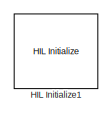
[diagram: root canvas - part 1/3, top center region]
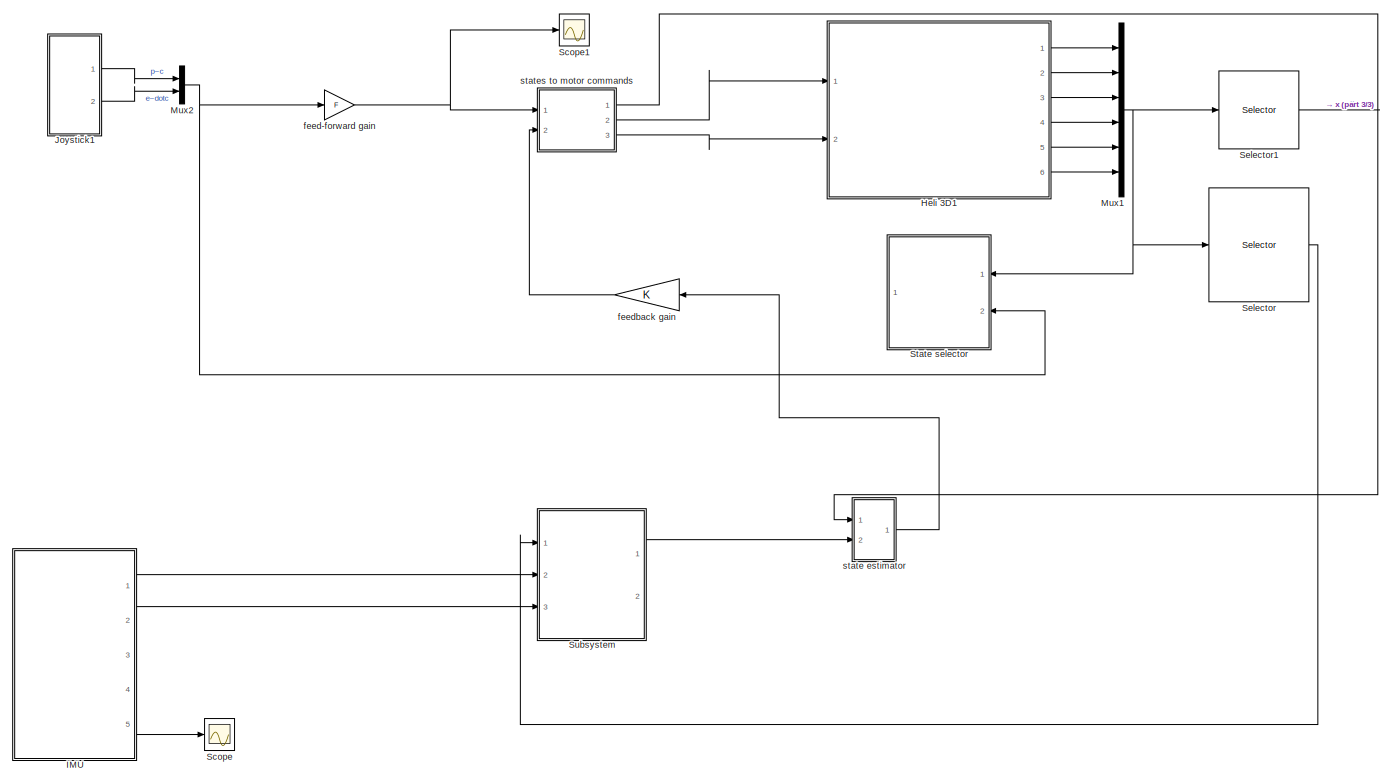
[diagram: root canvas - part 2/3, most of the canvas]
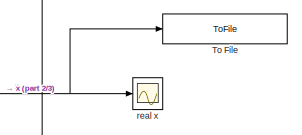
[diagram: root canvas - part 3/3, top right region]
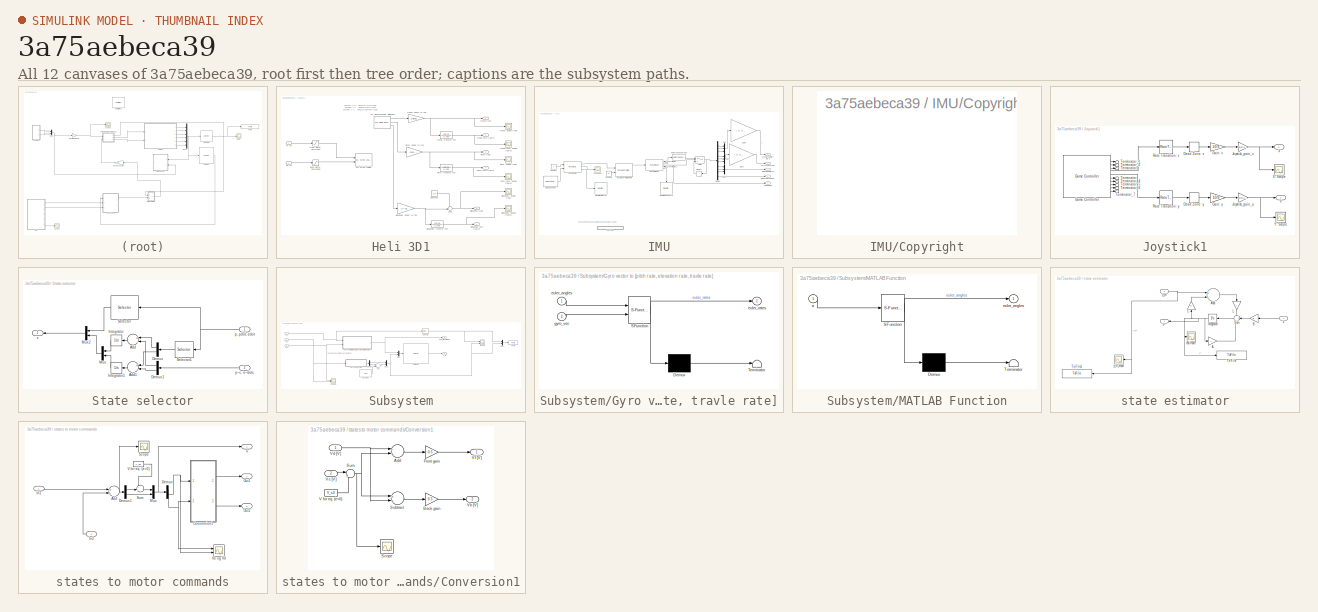
[diagram: thumbnail index - all 12 canvases of the model, root first then tree order]
MODEL slx_3a75aebeca39
KIND model
CONFIG AbsTol = auto
CONFIG FixedStep = 0.002
CONFIG MaxStep = auto
CONFIG MinStep = auto
CONFIG PostLoadFcn = qc_set_target_type(getConfigSet(bdroot, 'QUARC Default Target Configuration'));
CONFIG RelTol = 1e-3
CONFIG SampleTimeConstraint = Unconstrained
CONFIG Solver = ode1
CONFIG SolverMode = Auto
CONFIG SolverName = ode1
CONFIG StartTime = 0.0
CONFIG StopTime = inf
BLOCK [Reference] HIL Initialize1  REF=quarc_library/Data Acquisition/Generic/Configuration/HIL Initialize
  AttributesFormatString = %<object_name> (%<board_type>-%<board_number>)
  Ports = []
  Priority = -99
  SourceBlock = quarc_library/Data Acquisition/Generic/Configuration/HIL Initialize
  SourceType = HIL Initialize
  UserDataPersistent = on
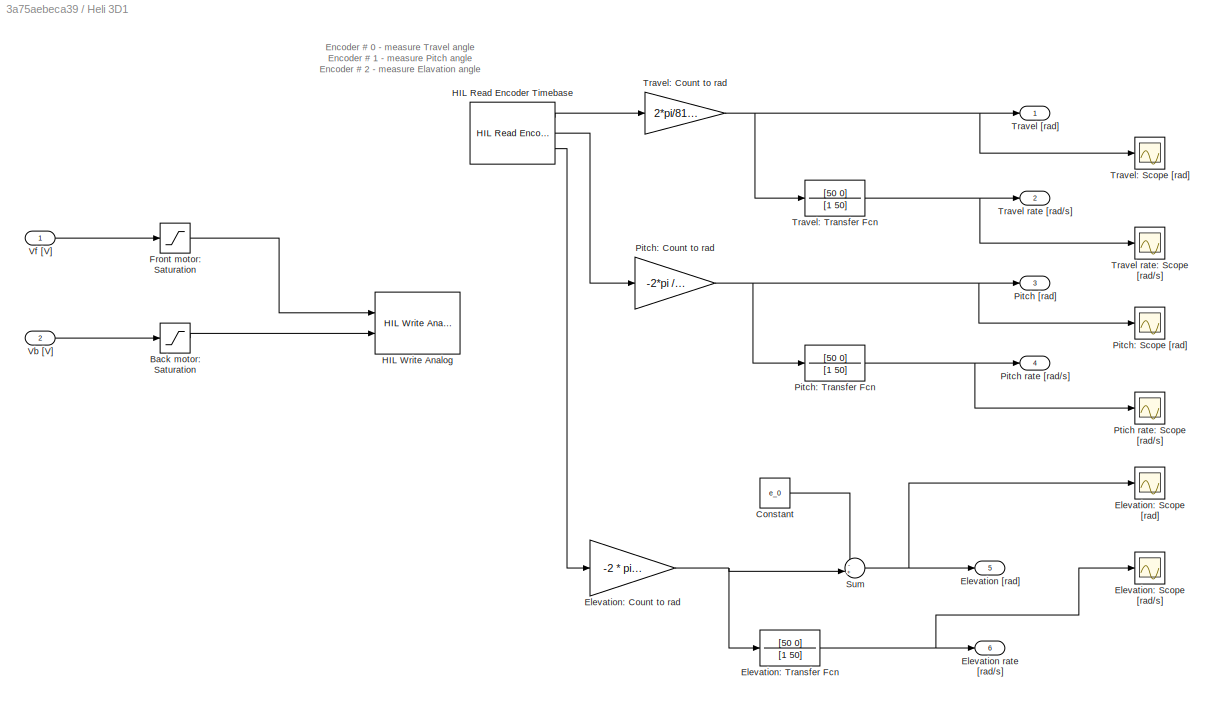
BLOCK [SubSystem] Heli 3D1
  Ports = [2, 6]
  RequestExecContextInheritance = off
  Variant = off
BLOCK [Saturate] Heli 3D1/Back motor: Saturation
  InputPortMap = u0
  LowerLimit = -5
  Ports = [1, 1]
  UpperLimit = 5
BLOCK [Constant] Heli 3D1/Constant
  Value = e_0
BLOCK [Outport] Heli 3D1/Elevation [rad]
  IconDisplay = Port number
  Port = 5
BLOCK [Outport] Heli 3D1/Elevation rate [rad//s]
  IconDisplay = Port number
  Port = 6
BLOCK [Gain] Heli 3D1/Elevation: Count to rad
  Gain = -2 * pi /4096
  OutDataTypeStr = Inherit: Inherit via internal rule
  ParamDataTypeStr = Inherit: Inherit via internal rule
  SaturateOnIntegerOverflow = off
BLOCK [Scope] Heli 3D1/Elevation: Scope [rad//s]
  Ports = [1]
  ScopeSpecificationString = C++SS(StrPVP('Location','[1236, 673, 1560, 912]'),StrPVP('Open','off'),MxPVP('AxesTitles',24,'struct(''axes1'',''%<SignalLabel>'')'),MxPVP('ScopeGraphics',28,'struct(''FigureColor'',''[0.5 0.5 0.5]'',''AxesColor'',''[0 0 0]'',''AxesTickColor'',''[1 1 1]'',''LineColors'',''[1 1 0;1 0 1;0 1 1;1 0 0;0 1 0;0 0 1]'',''LineStyles'',''-|-|-|-|-|-'',''LineWidths'',''[0.5 0.5 0.5 0.5 0.5 0.5]'',''MarkerSty...<+342ch>
BLOCK [Scope] Heli 3D1/Elevation: Scope [rad]
  Ports = [1]
  ScopeSpecificationString = Simulink.scopes.TimeScopeBlockCfg('CurrentConfiguration', extmgr.ConfigurationSet(extmgr.Configuration('Core','General UI',true),extmgr.Configuration('Core','Source UI',true),extmgr.Configuration('Sources','WiredSimulink',true,'DataLoggingVariableName','ScopeData12','DataLoggingSaveFormat','StructureWithTime','DataLoggingLimitDataPoints',true,'DataLoggingDecimation','1','DataLoggingDecimateData',t...<+1699ch>
BLOCK [TransferFcn] Heli 3D1/Elevation: Transfer Fcn
  Denominator = [1 50]
  Numerator = [50 0]
BLOCK [Saturate] Heli 3D1/Front motor: Saturation
  InputPortMap = u0
  LowerLimit = -5
  Ports = [1, 1]
  UpperLimit = 5
BLOCK [Reference] Heli 3D1/HIL Read Encoder Timebase  REF=quarc_library/Data Acquisition/Generic/Timebases/HIL Read Encoder
Timebase
  AttributesFormatString = (%<object_name>)
  Ports = [0, 3]
  SourceBlock = quarc_library/Data Acquisition/Generic/Timebases/HIL Read Encoder\nTimebase
  SourceType = HIL Read Encoder Timebase
  UserDataPersistent = on
BLOCK [Reference] Heli 3D1/HIL Write Analog  REF=quarc_library/Data Acquisition/Generic/Immediate I//O/HIL Write Analog
  AttributesFormatString = (%<object_name>)
  Ports = [2]
  SourceBlock = quarc_library/Data Acquisition/Generic/Immediate I//O/HIL Write Analog
  SourceType = HIL Write Analog
  UserDataPersistent = on
BLOCK [Outport] Heli 3D1/Pitch [rad]
  IconDisplay = Port number
  Port = 3
BLOCK [Outport] Heli 3D1/Pitch rate [rad//s]
  IconDisplay = Port number
  Port = 4
BLOCK [Gain] Heli 3D1/Pitch: Count to rad
  Gain = -2*pi /4096
  OutDataTypeStr = Inherit: Inherit via internal rule
  ParamDataTypeStr = Inherit: Inherit via internal rule
  SaturateOnIntegerOverflow = off
BLOCK [Scope] Heli 3D1/Pitch: Scope [rad]
  Ports = [1]
  ScopeSpecificationString = Simulink.scopes.TimeScopeBlockCfg('CurrentConfiguration', extmgr.ConfigurationSet(extmgr.Configuration('Core','General UI',true),extmgr.Configuration('Core','Source UI',true),extmgr.Configuration('Sources','WiredSimulink',true,'DataLoggingVariableName','ScopeData10','DataLoggingSaveFormat','StructureWithTime','DataLoggingLimitDataPoints',true,'DataLoggingDecimation','1','DataLoggingDecimateData',t...<+1737ch>
BLOCK [TransferFcn] Heli 3D1/Pitch: Transfer Fcn
  Denominator = [1 50]
  Numerator = [50 0]
BLOCK [Scope] Heli 3D1/Ptich rate: Scope [rad//s]
  Ports = [1]
  ScopeSpecificationString = C++SS(StrPVP('Location','[1236, 673, 1560, 912]'),StrPVP('Open','off'),MxPVP('AxesTitles',24,'struct(''axes1'',''%<SignalLabel>'')'),MxPVP('ScopeGraphics',28,'struct(''FigureColor'',''[0.5 0.5 0.5]'',''AxesColor'',''[0 0 0]'',''AxesTickColor'',''[1 1 1]'',''LineColors'',''[1 1 0;1 0 1;0 1 1;1 0 0;0 1 0;0 0 1]'',''LineStyles'',''-|-|-|-|-|-'',''LineWidths'',''[0.5 0.5 0.5 0.5 0.5 0.5]'',''MarkerSty...<+342ch>
BLOCK [Sum] Heli 3D1/Sum
  IconShape = round
  InputSameDT = off
  Inputs = -+|
  OutDataTypeStr = Inherit: Inherit via internal rule
  Ports = [2, 1]
  SaturateOnIntegerOverflow = off
BLOCK [Outport] Heli 3D1/Travel [rad]
  IconDisplay = Port number
BLOCK [Outport] Heli 3D1/Travel rate [rad//s]
  IconDisplay = Port number
  Port = 2
BLOCK [Scope] Heli 3D1/Travel rate: Scope [rad//s]
  Ports = [1]
  ScopeSpecificationString = Simulink.scopes.TimeScopeBlockCfg('CurrentConfiguration', extmgr.ConfigurationSet(extmgr.Configuration('Core','General UI',true),extmgr.Configuration('Core','Source UI',true),extmgr.Configuration('Sources','WiredSimulink',true,'DataLoggingVariableName','ScopeData9','DataLoggingSaveFormat','StructureWithTime','DataLoggingLimitDataPoints',true,'DataLoggingDecimation','1','DataLoggingDecimateData',tr...<+1672ch>
BLOCK [Gain] Heli 3D1/Travel: Count to rad
  Gain = 2*pi/8192
  OutDataTypeStr = Inherit: Inherit via internal rule
  ParamDataTypeStr = Inherit: Inherit via internal rule
  SaturateOnIntegerOverflow = off
BLOCK [Scope] Heli 3D1/Travel: Scope [rad]
  Ports = [1]
  ScopeSpecificationString = Simulink.scopes.TimeScopeBlockCfg('CurrentConfiguration', extmgr.ConfigurationSet(extmgr.Configuration('Core','General UI',true),extmgr.Configuration('Core','Source UI',true),extmgr.Configuration('Sources','WiredSimulink',true,'DataLoggingVariableName','ScopeData8','DataLoggingSaveFormat','StructureWithTime','DataLoggingLimitDataPoints',true,'DataLoggingDecimation','1','DataLoggingDecimateData',tr...<+1672ch>
BLOCK [TransferFcn] Heli 3D1/Travel: Transfer Fcn
  Denominator = [1 50]
  Numerator = [50 0]
BLOCK [Inport] Heli 3D1/Vb [V]
  IconDisplay = Port number
  Port = 2
BLOCK [Inport] Heli 3D1/Vf [V]
  IconDisplay = Port number
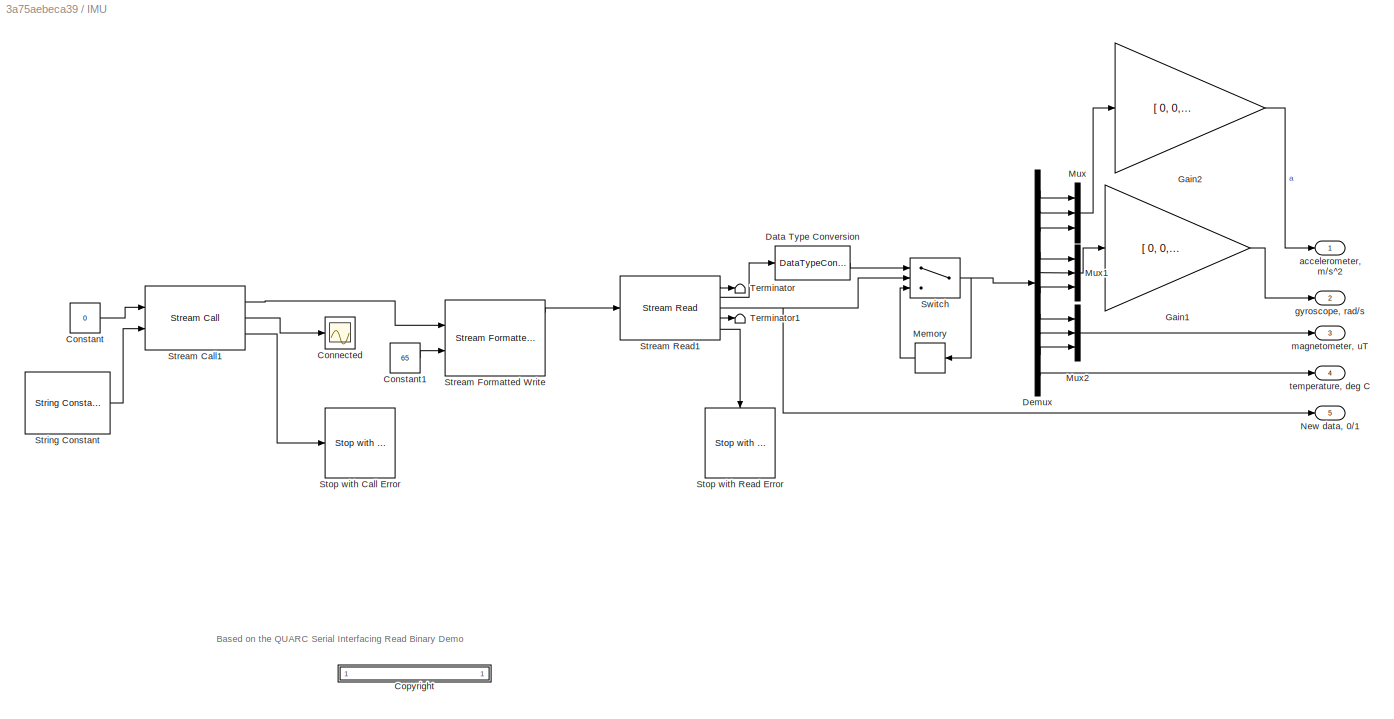
BLOCK [SubSystem] IMU
  Ports = [0, 5]
  RequestExecContextInheritance = off
  Variant = off
BLOCK [Scope] IMU/Connected
  Ports = [1]
  ScopeSpecificationString = Simulink.scopes.TimeScopeBlockCfg('CurrentConfiguration', extmgr.ConfigurationSet(extmgr.Configuration('Core','General UI',true),extmgr.Configuration('Core','Source UI',true),extmgr.Configuration('Sources','WiredSimulink',true,'DataLoggingSaveFormat','StructureWithTime','DataLoggingLimitDataPoints',true,'DataLoggingDecimation','1','DataLoggingDecimateData',true,'DataLoggingVariableName','ScopeData...<+909ch>
BLOCK [Constant] IMU/Constant
  Value = 0
BLOCK [Constant] IMU/Constant1
  Value = 65
BLOCK [SubSystem] IMU/<copyright redacted>
  OpenFcn = web('http://www.quanser.com/');
  Permissions = NoReadOrWrite
  PermitHierarchicalResolution = None
  Ports = []
  RequestExecContextInheritance = off
  Variant = off
BLOCK [DataTypeConversion] IMU/Data Type Conversion
  OutDataTypeStr = double
  RndMeth = Floor
  SaturateOnIntegerOverflow = off
BLOCK [Demux] IMU/Demux
  DisplayOption = bar
  Outputs = 10
  Ports = [1, 10]
BLOCK [Gain] IMU/Gain1
  Gain = [ 0, 0, 1; 0, 1, 0; -1, 0, 0]
  Multiplication = Matrix(K*u) (u vector)
  OutDataTypeStr = Inherit: Inherit via internal rule
  ParamDataTypeStr = Inherit: Inherit via internal rule
  SaturateOnIntegerOverflow = off
BLOCK [Gain] IMU/Gain2
  Gain = [ 0, 0, 1; 0, 1, 0; -1, 0, 0]
  Multiplication = Matrix(K*u) (u vector)
  OutDataTypeStr = Inherit: Inherit via internal rule
  ParamDataTypeStr = Inherit: Inherit via internal rule
  SaturateOnIntegerOverflow = off
BLOCK [Memory] IMU/Memory
  X0 = [0 0 0 0 0 0 0 0 0 0]
BLOCK [Mux] IMU/Mux
  DisplayOption = bar
  Inputs = 3
  Ports = [3, 1]
BLOCK [Mux] IMU/Mux1
  DisplayOption = bar
  Inputs = 3
  Ports = [3, 1]
BLOCK [Mux] IMU/Mux2
  DisplayOption = bar
  Inputs = 3
  Ports = [3, 1]
BLOCK [Outport] IMU/New data, 0//1
  IconDisplay = Port number
  Port = 5
BLOCK [Reference] IMU/Stop with Call Error  REF=quarc_library/Sinks/Error Handling/Stop with Error
  Ports = [1]
  SourceBlock = quarc_library/Sinks/Error Handling/Stop with Error
  SourceType = Stop with Error
BLOCK [Reference] IMU/Stop with Read Error  REF=quarc_library/Sinks/Error Handling/Stop with Error
  Ports = [1]
  SourceBlock = quarc_library/Sinks/Error Handling/Stop with Error
  SourceType = Stop with Error
BLOCK [Reference] IMU/Stream Call1  REF=quarc_library/Communications/Intermediate/Stream Call
  Ports = [2, 3]
  SourceBlock = quarc_library/Communications/Intermediate/Stream Call
  SourceType = Stream Call
BLOCK [Reference] IMU/Stream Formatted Write  REF=quarc_library/Communications/Intermediate/Stream Formatted
Write
  Ports = [2, 5]
  SourceBlock = quarc_library/Communications/Intermediate/Stream Formatted\nWrite
  SourceType = Stream Formatted Write
BLOCK [Reference] IMU/Stream Read1  REF=quarc_library/Communications/Intermediate/Stream Read
  Ports = [1, 5]
  SourceBlock = quarc_library/Communications/Intermediate/Stream Read
  SourceType = Stream Read
BLOCK [Reference] IMU/String Constant  REF=quarc_library/Strings/String Constant
  AttributesFormatString = "serial://IMU:7?baud=115200,word=8,parity=none,stop=1"
  Ports = [0, 1]
  SourceBlock = quarc_library/Strings/String Constant
  SourceType = String Constant
BLOCK [Switch] IMU/Switch
  Criteria = u2 > Threshold
  InputSameDT = off
  SaturateOnIntegerOverflow = off
BLOCK [Terminator] IMU/Terminator
BLOCK [Terminator] IMU/Terminator1
BLOCK [Outport] IMU/accelerometer, m//s^2
  IconDisplay = Port number
BLOCK [Outport] IMU/gyroscope, rad//s
  IconDisplay = Port number
  Port = 2
BLOCK [Outport] IMU/magnetometer, uT
  IconDisplay = Port number
  Port = 3
BLOCK [Outport] IMU/temperature, deg C
  IconDisplay = Port number
  Port = 4
BLOCK [SubSystem] Joystick1
  Ports = [0, 2]
  RequestExecContextInheritance = off
  Variant = off
BLOCK [DeadZone] Joystick1/Dead Zone: x
  LowerValue = -0.1
  UpperValue = 0.1
BLOCK [DeadZone] Joystick1/Dead Zone: y
  LowerValue = -0.1
  UpperValue = 0.1
BLOCK [Gain] Joystick1/Gain: x
  Gain = 10/9
  OutDataTypeStr = Inherit: Inherit via internal rule
  ParamDataTypeStr = Inherit: Inherit via internal rule
  SaturateOnIntegerOverflow = off
BLOCK [Gain] Joystick1/Gain: y
  Gain = 10/9
  OutDataTypeStr = Inherit: Inherit via internal rule
  ParamDataTypeStr = Inherit: Inherit via internal rule
  SaturateOnIntegerOverflow = off
BLOCK [Reference] Joystick1/Game Controller  REF=quarc_library/Devices/Peripherals/Target/Game Controller
  Ports = [0, 10]
  SourceBlock = quarc_library/Devices/Peripherals/Target/Game Controller
  SourceType = Game Controller
BLOCK [Gain] Joystick1/Joystick_gain_x
  Gain = Joystick_gain_x
  OutDataTypeStr = Inherit: Inherit via internal rule
  ParamDataTypeStr = Inherit: Inherit via internal rule
  SaturateOnIntegerOverflow = off
BLOCK [Gain] Joystick1/Joystick_gain_y
  Gain = Joystick_gain_y
  OutDataTypeStr = Inherit: Inherit via internal rule
  ParamDataTypeStr = Inherit: Inherit via internal rule
  SaturateOnIntegerOverflow = off
BLOCK [RateTransition] Joystick1/Rate Transition: x
BLOCK [RateTransition] Joystick1/Rate Transition: y
BLOCK [Terminator] Joystick1/Terminator
BLOCK [Terminator] Joystick1/Terminator1
BLOCK [Terminator] Joystick1/Terminator_1
BLOCK [Terminator] Joystick1/Terminator_2
BLOCK [Terminator] Joystick1/Terminator_4
BLOCK [Terminator] Joystick1/Terminator_5
BLOCK [Terminator] Joystick1/Terminator_6
BLOCK [Terminator] Joystick1/Terminator_7
BLOCK [Outport] Joystick1/X
  IconDisplay = Port number
BLOCK [Scope] Joystick1/X: Scope
  Ports = [1]
  ScopeSpecificationString = Simulink.scopes.TimeScopeBlockCfg('CurrentConfiguration', extmgr.ConfigurationSet(extmgr.Configuration('Core','General UI',true),extmgr.Configuration('Core','Source UI',true),extmgr.Configuration('Sources','WiredSimulink',true,'DataLoggingVariableName','ScopeData7','DataLoggingSaveFormat','StructureWithTime','DataLoggingLimitDataPoints',true,'DataLoggingDecimation','1','DataLoggingDecimateData',tr...<+1663ch>
BLOCK [Outport] Joystick1/Y
  IconDisplay = Port number
  Port = 2
BLOCK [Scope] Joystick1/Y: Scope
  Ports = [1]
  ScopeSpecificationString = Simulink.scopes.TimeScopeBlockCfg('CurrentConfiguration', extmgr.ConfigurationSet(extmgr.Configuration('Core','General UI',true),extmgr.Configuration('Core','Source UI',true),extmgr.Configuration('Sources','WiredSimulink',true,'DataLoggingVariableName','ScopeData5','DataLoggingSaveFormat','StructureWithTime','DataLoggingLimitDataPoints',true,'DataLoggingDecimation','1','DataLoggingDecimateData',tr...<+1667ch>
BLOCK [Mux] Mux1
  DisplayOption = bar
  Inputs = 6
  Ports = [6, 1]
BLOCK [Mux] Mux2
  DisplayOption = bar
  Inputs = 2
  Ports = [2, 1]
BLOCK [Scope] Scope
  Ports = [1]
  ScopeSpecificationString = Simulink.scopes.TimeScopeBlockCfg('CurrentConfiguration', extmgr.ConfigurationSet(extmgr.Configuration('Core','General UI',true),extmgr.Configuration('Core','Source UI',true),extmgr.Configuration('Sources','WiredSimulink',true,'DataLoggingVariableName','ScopeData5'),extmgr.Configuration('Visuals','Time Domain',true,'SerializedDisplays',{struct('MinYLimReal','-0.125','MaxYLimReal','1.125','YLabelRe...<+1382ch>
BLOCK [Scope] Scope1
  Ports = [1]
  ScopeSpecificationString = Simulink.scopes.TimeScopeBlockCfg('CurrentConfiguration', extmgr.ConfigurationSet(extmgr.Configuration('Core','General UI',true),extmgr.Configuration('Core','Source UI',true),extmgr.Configuration('Sources','WiredSimulink',true,'DataLoggingVariableName','ScopeData2'),extmgr.Configuration('Visuals','Time Domain',true,'SerializedDisplays',{struct('MinYLimReal','-0.05563','MaxYLimReal','-0.05464','YLa...<+1499ch>
BLOCK [Selector] Selector
  IndexOptions = Index vector (dialog)
  Indices = [3, 5 , 1]
  InputPortWidth = 6
  OutputSizes = 1
  Ports = [1, 1]
BLOCK [Selector] Selector1
  IndexOptions = Index vector (dialog)
  Indices = [3 4 5 6 2]
  InputPortWidth = 6
  OutputSizes = 1
  Ports = [1, 1]
BLOCK [SubSystem] State selector
  Ports = [2, 1]
  RequestExecContextInheritance = off
  Variant = off
BLOCK [Sum] State selector/Add
  InputSameDT = off
  Inputs = +-
  OutDataTypeStr = Inherit: Inherit via internal rule
  Ports = [2, 1]
  SaturateOnIntegerOverflow = off
BLOCK [Sum] State selector/Add1
  InputSameDT = off
  Inputs = +-
  OutDataTypeStr = Inherit: Inherit via internal rule
  Ports = [2, 1]
  SaturateOnIntegerOverflow = off
BLOCK [Demux] State selector/Demux
  DisplayOption = bar
  Outputs = 2
  Ports = [1, 2]
BLOCK [Demux] State selector/Demux1
  DisplayOption = bar
  Outputs = 2
  Ports = [1, 2]
BLOCK [Integrator] State selector/Integrator
  Ports = [1, 1]
BLOCK [Integrator] State selector/Integrator1
  Ports = [1, 1]
BLOCK [Mux] State selector/Mux
  DisplayOption = bar
  Inputs = 2
  Ports = [2, 1]
BLOCK [Mux] State selector/Mux2
  DisplayOption = bar
  Inputs = 2
  Ports = [2, 1]
BLOCK [Selector] State selector/Selector
  IndexOptions = Index vector (dialog)
  Indices = [3 4 6]
  InputPortWidth = 6
  OutputSizes = 1
  Ports = [1, 1]
BLOCK [Selector] State selector/Selector1
  IndexOptions = Index vector (dialog)
  Indices = [3 6]
  InputPortWidth = 6
  OutputSizes = 1
  Ports = [1, 1]
BLOCK [Inport] State selector/p, pdot, edot
  IconDisplay = Port number
BLOCK [Inport] State selector/p~c, e~dotc
  IconDisplay = Port number
  Port = 2
BLOCK [Outport] State selector/x
  IconDisplay = Port number
BLOCK [SubSystem] Subsystem
  Ports = [3, 2]
  RequestExecContextInheritance = off
  Variant = off
BLOCK [Sum] Subsystem/Add
  InputSameDT = off
  OutDataTypeStr = Inherit: Inherit via internal rule
  Ports = [2, 1]
  SaturateOnIntegerOverflow = off
BLOCK [Constant] Subsystem/Constant
  Value = -0.11
BLOCK [Demux] Subsystem/Demux
  DisplayOption = bar
  Outputs = 2
  Ports = [1, 2]
BLOCK [SubSystem] Subsystem/Gyro vector to [pitch rate, elevation rate, travle rate]
  ErrorFcn = Stateflow.Translate.translate
  PermitHierarchicalResolution = ExplicitOnly
  Ports = [2, 1]
  RequestExecContextInheritance = off
  SFBlockType = MATLAB Function
  TreatAsAtomicUnit = on
  Variant = off
BLOCK [Demux] Subsystem/Gyro vector to [pitch rate, elevation rate, travle rate]/ Demux 
  Outputs = 1
  Ports = [1, 1]
BLOCK [S-Function] Subsystem/Gyro vector to [pitch rate, elevation rate, travle rate]/ SFunction 
  EnableBusSupport = on
  FunctionName = sf_sfun
  PortCounts = [2 2]
  Ports = [2, 2]
  SFunctionDeploymentMode = off
  Tag = Stateflow S-Function LQR_integral_IMU_task4 2
BLOCK [Terminator] Subsystem/Gyro vector to [pitch rate, elevation rate, travle rate]/ Terminator 
BLOCK [Inport] Subsystem/Gyro vector to [pitch rate, elevation rate, travle rate]/euler_angles
  IconDisplay = Port number
BLOCK [Outport] Subsystem/Gyro vector to [pitch rate, elevation rate, travle rate]/euler_rates
  IconDisplay = Port number
BLOCK [Inport] Subsystem/Gyro vector to [pitch rate, elevation rate, travle rate]/gyro_vec
  IconDisplay = Port number
  Port = 2
BLOCK [Inport] Subsystem/In1
  IconDisplay = Port number
BLOCK [Inport] Subsystem/In2
  IconDisplay = Port number
  Port = 2
BLOCK [Inport] Subsystem/In3
  IconDisplay = Port number
  Port = 3
BLOCK [SubSystem] Subsystem/MATLAB Function
  ErrorFcn = Stateflow.Translate.translate
  PermitHierarchicalResolution = ExplicitOnly
  Ports = [1, 1]
  RequestExecContextInheritance = off
  SFBlockType = MATLAB Function
  TreatAsAtomicUnit = on
  Variant = off
BLOCK [Demux] Subsystem/MATLAB Function/ Demux 
  Outputs = 1
  Ports = [1, 1]
BLOCK [S-Function] Subsystem/MATLAB Function/ SFunction 
  EnableBusSupport = on
  FunctionName = sf_sfun
  PortCounts = [1 2]
  Ports = [1, 2]
  SFunctionDeploymentMode = off
  Tag = Stateflow S-Function LQR_integral_IMU_task4 1
BLOCK [Terminator] Subsystem/MATLAB Function/ Terminator 
BLOCK [Inport] Subsystem/MATLAB Function/a
  IconDisplay = Port number
BLOCK [Outport] Subsystem/MATLAB Function/euler_angles
  IconDisplay = Port number
BLOCK [Mux] Subsystem/Mux
  DisplayOption = bar
  Inputs = 2
  Ports = [2, 1]
BLOCK [Mux] Subsystem/Mux1
  DisplayOption = bar
  Inputs = 2
  Ports = [2, 1]
BLOCK [Mux] Subsystem/Mux2
  DisplayOption = bar
  Inputs = 2
  Ports = [2, 1]
BLOCK [Scope] Subsystem/Scope
  NumInputPorts = 2
  Ports = [2]
  ScopeSpecificationString = Simulink.scopes.TimeScopeBlockCfg('CurrentConfiguration', extmgr.ConfigurationSet(extmgr.Configuration('Core','General UI',true),extmgr.Configuration('Core','Source UI',true),extmgr.Configuration('Sources','WiredSimulink',true,'DataLoggingVariableName','ScopeData2'),extmgr.Configuration('Visuals','Time Domain',true,'SerializedDisplays',{struct('MinYLimReal','-0.71208','MaxYLimReal','0.7087','YLabe...<+1493ch>
BLOCK [Scope] Subsystem/Scope1
  NumInputPorts = 2
  Ports = [2]
  ScopeSpecificationString = Simulink.scopes.TimeScopeBlockCfg('CurrentConfiguration', extmgr.ConfigurationSet(extmgr.Configuration('Core','General UI',true),extmgr.Configuration('Core','Source UI',true),extmgr.Configuration('Sources','WiredSimulink',true,'DataLoggingVariableName','ScopeData3'),extmgr.Configuration('Visuals','Time Domain',true,'SerializedDisplays',{struct('MinYLimReal','-17.35204','MaxYLimReal','10.43783','YL...<+1438ch>
BLOCK [Selector] Subsystem/Selector
  IndexOptions = Index vector (dialog)
  Indices = [4 1 5 2 3]
  InputPortWidth = 5
  OutputSizes = 1
  Ports = [1, 1]
BLOCK [Selector] Subsystem/Selector1
  IndexOptions = Index vector (dialog)
  Indices = [1 2]
  InputPortWidth = 3
  OutputSizes = 1
  Ports = [1, 1]
BLOCK [ToFile] Subsystem/To File
  Commented = on
  Filename = accel_transformation_corrected_e_0
  Ports = [1]
BLOCK [Outport] Subsystem/euler_transformed
  IconDisplay = Port number
  Port = 2
BLOCK [Outport] Subsystem/y_m
  IconDisplay = Port number
BLOCK [ToFile] To File
  Filename = task_3_4_encoder_feedback
  MatrixName = encoder_fb
  Ports = [1]
BLOCK [Gain] feed-forward gain
  Gain = F
  Multiplication = Matrix(K*u)
  OutDataTypeStr = Inherit: Inherit via internal rule
  ParamDataTypeStr = Inherit: Inherit via internal rule
  SaturateOnIntegerOverflow = off
BLOCK [Gain] feedback gain
  Gain = K
  Multiplication = Matrix(K*u)
  OutDataTypeStr = Inherit: Inherit via internal rule
  ParamDataTypeStr = Inherit: Inherit via internal rule
  SaturateOnIntegerOverflow = off
BLOCK [Scope] real x
  Ports = [1]
  ScopeSpecificationString = Simulink.scopes.TimeScopeBlockCfg('CurrentConfiguration', extmgr.ConfigurationSet(extmgr.Configuration('Core','General UI',true),extmgr.Configuration('Core','Source UI',true),extmgr.Configuration('Sources','WiredSimulink',true,'DataLoggingVariableName','ScopeData3'),extmgr.Configuration('Visuals','Time Domain',true,'SerializedDisplays',{struct('MinYLimReal','-1.45802','MaxYLimReal','3.48617','YLab...<+1485ch>
BLOCK [SubSystem] state estimator
  Ports = [2, 1]
  RequestExecContextInheritance = off
  Variant = off
BLOCK [Gain] state estimator/A
  Gain = A
  Multiplication = Matrix(K*u)
  OutDataTypeStr = Inherit: Inherit via internal rule
  ParamDataTypeStr = Inherit: Inherit via internal rule
  SaturateOnIntegerOverflow = off
BLOCK [Sum] state estimator/Add
  InputSameDT = off
  Inputs = +-
  OutDataTypeStr = Inherit: Inherit via internal rule
  Ports = [2, 1]
  SaturateOnIntegerOverflow = off
BLOCK [Gain] state estimator/B
  Gain = B
  Multiplication = Matrix(K*u)
  OutDataTypeStr = Inherit: Inherit via internal rule
  ParamDataTypeStr = Inherit: Inherit via internal rule
  SaturateOnIntegerOverflow = off
BLOCK [Gain] state estimator/C
  Gain = C
  Multiplication = Matrix(K*u)
  OutDataTypeStr = Inherit: Inherit via internal rule
  ParamDataTypeStr = Inherit: Inherit via internal rule
  SaturateOnIntegerOverflow = off
BLOCK [Integrator] state estimator/Integrator
  Ports = [1, 1]
BLOCK [Gain] state estimator/L
  Gain = L
  Multiplication = Matrix(K*u)
  OutDataTypeStr = Inherit: Inherit via internal rule
  ParamDataTypeStr = Inherit: Inherit via internal rule
  SaturateOnIntegerOverflow = off
BLOCK [Sum] state estimator/Sum
  IconShape = round
  InputSameDT = off
  Inputs = +++
  OutDataTypeStr = Inherit: Inherit via internal rule
  Ports = [3, 1]
  SaturateOnIntegerOverflow = off
BLOCK [ToFile] state estimator/To File
  Filename = task3_4_feedback_estimate
  MatrixName = estimate_fb
  Ports = [1]
BLOCK [ToFile] state estimator/To File1
  Filename = task3_4_y_m_feedback
  MatrixName = y_m_plot_fb
  Ports = [1]
BLOCK [Scope] state estimator/estimate
  Ports = [1]
  ScopeSpecificationString = Simulink.scopes.TimeScopeBlockCfg('CurrentConfiguration', extmgr.ConfigurationSet(extmgr.Configuration('Core','General UI',true),extmgr.Configuration('Core','Source UI',true),extmgr.Configuration('Sources','WiredSimulink',true,'DataLoggingVariableName','ScopeData1'),extmgr.Configuration('Visuals','Time Domain',true,'SerializedDisplays',{struct('MinYLimReal','-1.21389','MaxYLimReal','3.11652','YLab...<+1489ch>
BLOCK [Inport] state estimator/u
  IconDisplay = Port number
BLOCK [Outport] state estimator/x^
  IconDisplay = Port number
BLOCK [Inport] state estimator/y_m
  IconDisplay = Port number
  Port = 2
BLOCK [Scope] state estimator/y_m_scope
  Ports = [1]
  ScopeSpecificationString = Simulink.scopes.TimeScopeBlockCfg('CurrentConfiguration', extmgr.ConfigurationSet(extmgr.Configuration('Core','General UI',true),extmgr.Configuration('Core','Source UI',true),extmgr.Configuration('Sources','WiredSimulink',true,'DataLoggingVariableName','ScopeData4'),extmgr.Configuration('Visuals','Time Domain',true,'SerializedDisplays',{struct('MinYLimReal','-4.08657','MaxYLimReal','3.45749','YLab...<+1495ch>
BLOCK [SubSystem] states to motor commands
  Ports = [2, 3]
  RequestExecContextInheritance = off
  Variant = off
BLOCK [Sum] states to motor commands/Add
  InputSameDT = off
  Inputs = +-
  OutDataTypeStr = Inherit: Inherit via internal rule
  Ports = [2, 1]
  SaturateOnIntegerOverflow = off
BLOCK [SubSystem] states to motor commands/Conversion1
  Ports = [2, 2]
  RequestExecContextInheritance = off
  Variant = off
BLOCK [Sum] states to motor commands/Conversion1/Add
  InputSameDT = off
  Inputs = -+
  OutDataTypeStr = Inherit: Inherit via internal rule
  Ports = [2, 1]
  SaturateOnIntegerOverflow = off
BLOCK [Gain] states to motor commands/Conversion1/Back gain
  Gain = 0.5
  OutDataTypeStr = Inherit: Inherit via internal rule
  ParamDataTypeStr = Inherit: Inherit via internal rule
  SaturateOnIntegerOverflow = off
BLOCK [Gain] states to motor commands/Conversion1/Front gain
  Gain = 0.5
  OutDataTypeStr = Inherit: Inherit via internal rule
  ParamDataTypeStr = Inherit: Inherit via internal rule
  SaturateOnIntegerOverflow = off
BLOCK [Scope] states to motor commands/Conversion1/Scope
  Ports = [1]
  ScopeSpecificationString = Simulink.scopes.TimeScopeBlockCfg('CurrentConfiguration', extmgr.ConfigurationSet(extmgr.Configuration('Core','General UI',true),extmgr.Configuration('Core','Source UI',true),extmgr.Configuration('Sources','WiredSimulink',true,'DataLoggingVariableName','ScopeData1'),extmgr.Configuration('Visuals','Time Domain',true,'SerializedDisplays',{struct('MinYLimReal','2.02746','MaxYLimReal','18.7425','YLabe...<+1393ch>
BLOCK [Sum] states to motor commands/Conversion1/Subtract
  InputSameDT = off
  OutDataTypeStr = Inherit: Inherit via internal rule
  Ports = [2, 1]
  SaturateOnIntegerOverflow = off
BLOCK [Sum] states to motor commands/Conversion1/Sum
  IconShape = round
  InputSameDT = off
  Inputs = |++
  OutDataTypeStr = Inherit: Inherit via internal rule
  Ports = [2, 1]
  SaturateOnIntegerOverflow = off
BLOCK [Constant] states to motor commands/Conversion1/V for eq. (e=0)
  Commented = on
  Value = V_s0
BLOCK [Outport] states to motor commands/Conversion1/Vb [V]
  IconDisplay = Port number
  Port = 2
BLOCK [Inport] states to motor commands/Conversion1/Vd [V]
  IconDisplay = Port number
BLOCK [Outport] states to motor commands/Conversion1/Vf [V]
  IconDisplay = Port number
BLOCK [Inport] states to motor commands/Conversion1/Vs [V]
  IconDisplay = Port number
  Port = 2
BLOCK [Demux] states to motor commands/Demux
  DisplayOption = bar
  Outputs = 2
  Ports = [1, 2]
BLOCK [Demux] states to motor commands/Demux1
  DisplayOption = bar
  Outputs = 2
  Ports = [1, 2]
BLOCK [Inport] states to motor commands/In1
  IconDisplay = Port number
BLOCK [Inport] states to motor commands/In2
  IconDisplay = Port number
  Port = 2
BLOCK [Mux] states to motor commands/Mux
  DisplayOption = bar
  Inputs = 2
  Ports = [2, 1]
BLOCK [Outport] states to motor commands/Out1
  IconDisplay = Port number
  Port = 2
BLOCK [Outport] states to motor commands/Out2
  IconDisplay = Port number
  Port = 3
BLOCK [Scope] states to motor commands/Scope
  Ports = [1]
  ScopeSpecificationString = Simulink.scopes.TimeScopeBlockCfg('CurrentConfiguration', extmgr.ConfigurationSet(extmgr.Configuration('Core','General UI',true),extmgr.Configuration('Core','Source UI',true),extmgr.Configuration('Sources','WiredSimulink',true,'DataLoggingVariableName','ScopeData4'),extmgr.Configuration('Visuals','Time Domain',true,'SerializedDisplays',{struct('MinYLimReal','-3.02411','MaxYLimReal','5.28996','YLab...<+1446ch>
BLOCK [Sum] states to motor commands/Sum
  IconShape = round
  InputSameDT = off
  Inputs = ++|
  OutDataTypeStr = Inherit: Inherit via internal rule
  Ports = [2, 1]
  SaturateOnIntegerOverflow = off
BLOCK [Constant] states to motor commands/V for eq. (e=0)
  Value = V_s0
BLOCK [Scope] states to motor commands/Vs og Vd
  NumInputPorts = 2
  Ports = [2]
  ScopeSpecificationString = Simulink.scopes.TimeScopeBlockCfg('CurrentConfiguration', extmgr.ConfigurationSet(extmgr.Configuration('Core','General UI',true),extmgr.Configuration('Core','Source UI',true),extmgr.Configuration('Sources','WiredSimulink',true,'DataLoggingVariableName','ScopeData1'),extmgr.Configuration('Visuals','Time Domain',true,'SerializedDisplays',{struct('MinYLimReal','-1.51148','MaxYLimReal','8.07111','YLab...<+1449ch>
BLOCK [Outport] states to motor commands/u
  IconDisplay = Port number
ANNOTATION Heli 3D1: Encoder # 0 - measure Travel angle Encoder # 1 - measure Pitch angle Encoder # 2 - measure Elavation angle
ANNOTATION IMU: Based on the QUARC Serial Interfacing Read Binary Demo
ANNOTATION Subsystem: Nb: Euler angles are: [pitch, elevation, travle]
LINE Heli 3D1/Back motor: Saturation:1 -> Heli 3D1/HIL Write Analog:2
LINE Heli 3D1/Constant:1 -> Heli 3D1/Sum:1
NET Heli 3D1/Elevation: Count to rad:1 -> Heli 3D1/Elevation: Transfer Fcn:1, Heli 3D1/Sum:2
NET Heli 3D1/Elevation: Transfer Fcn:1 -> Heli 3D1/Elevation rate [rad//s]:1, Heli 3D1/Elevation: Scope [rad//s]:1
LINE Heli 3D1/Front motor: Saturation:1 -> Heli 3D1/HIL Write Analog:1
LINE Heli 3D1/HIL Read Encoder Timebase:1 -> Heli 3D1/Travel: Count to rad:1
LINE Heli 3D1/HIL Read Encoder Timebase:2 -> Heli 3D1/Pitch: Count to rad:1
LINE Heli 3D1/HIL Read Encoder Timebase:3 -> Heli 3D1/Elevation: Count to rad:1
NET Heli 3D1/Pitch: Count to rad:1 -> Heli 3D1/Pitch [rad]:1, Heli 3D1/Pitch: Scope [rad]:1, Heli 3D1/Pitch: Transfer Fcn:1
NET Heli 3D1/Pitch: Transfer Fcn:1 -> Heli 3D1/Pitch rate [rad//s]:1, Heli 3D1/Ptich rate: Scope [rad//s]:1
NET Heli 3D1/Sum:1 -> Heli 3D1/Elevation [rad]:1, Heli 3D1/Elevation: Scope [rad]:1
NET Heli 3D1/Travel: Count to rad:1 -> Heli 3D1/Travel [rad]:1, Heli 3D1/Travel: Scope [rad]:1, Heli 3D1/Travel: Transfer Fcn:1
NET Heli 3D1/Travel: Transfer Fcn:1 -> Heli 3D1/Travel rate [rad//s]:1, Heli 3D1/Travel rate: Scope [rad//s]:1
LINE Heli 3D1/Vb [V]:1 -> Heli 3D1/Back motor: Saturation:1
LINE Heli 3D1/Vf [V]:1 -> Heli 3D1/Front motor: Saturation:1
LINE Heli 3D1:1 -> Mux1:1
LINE Heli 3D1:2 -> Mux1:2
LINE Heli 3D1:3 -> Mux1:3
LINE Heli 3D1:4 -> Mux1:4
LINE Heli 3D1:5 -> Mux1:5
LINE Heli 3D1:6 -> Mux1:6
LINE IMU/Constant1:1 -> IMU/Stream Formatted Write:2
LINE IMU/Constant:1 -> IMU/Stream Call1:1
LINE IMU/Data Type Conversion:1 -> IMU/Switch:1
LINE IMU/Demux:1 -> IMU/Mux:1
LINE IMU/Demux:10 -> IMU/temperature, deg C:1
LINE IMU/Demux:2 -> IMU/Mux:2
LINE IMU/Demux:3 -> IMU/Mux:3
LINE IMU/Demux:4 -> IMU/Mux1:1
LINE IMU/Demux:5 -> IMU/Mux1:2
LINE IMU/Demux:6 -> IMU/Mux1:3
LINE IMU/Demux:7 -> IMU/Mux2:1
LINE IMU/Demux:8 -> IMU/Mux2:2
LINE IMU/Demux:9 -> IMU/Mux2:3
LINE IMU/Gain1:1 -> IMU/gyroscope, rad//s:1
LINE IMU/Gain2:1 -> IMU/accelerometer, m//s^2:1
LINE IMU/Memory:1 -> IMU/Switch:3
LINE IMU/Mux1:1 -> IMU/Gain1:1
LINE IMU/Mux2:1 -> IMU/magnetometer, uT:1
LINE IMU/Mux:1 -> IMU/Gain2:1
LINE IMU/Stream Call1:1 -> IMU/Stream Formatted Write:1
LINE IMU/Stream Call1:2 -> IMU/Connected:1
LINE IMU/Stream Call1:3 -> IMU/Stop with Call Error:1
LINE IMU/Stream Formatted Write:1 -> IMU/Stream Read1:1
LINE IMU/Stream Read1:1 -> IMU/Terminator:1
LINE IMU/Stream Read1:2 -> IMU/Data Type Conversion:1
NET IMU/Stream Read1:3 -> IMU/New data, 0//1:1, IMU/Switch:2
LINE IMU/Stream Read1:4 -> IMU/Terminator1:1
LINE IMU/Stream Read1:5 -> IMU/Stop with Read Error:1
LINE IMU/String Constant:1 -> IMU/Stream Call1:2
NET IMU/Switch:1 -> IMU/Demux:1, IMU/Memory:1
LINE IMU:1 -> Subsystem:2
LINE IMU:2 -> Subsystem:3
LINE IMU:5 -> Scope:1
LINE Joystick1/Dead Zone: x:1 -> Joystick1/Gain: x:1
LINE Joystick1/Dead Zone: y:1 -> Joystick1/Gain: y:1
LINE Joystick1/Gain: x:1 -> Joystick1/Joystick_gain_x:1
LINE Joystick1/Gain: y:1 -> Joystick1/Joystick_gain_y:1
LINE Joystick1/Game Controller:1 -> Joystick1/Terminator_1:1
LINE Joystick1/Game Controller:10 -> Joystick1/Terminator_7:1
LINE Joystick1/Game Controller:2 -> Joystick1/Terminator_2:1
LINE Joystick1/Game Controller:3 -> Joystick1/Terminator1:1
LINE Joystick1/Game Controller:4 -> Joystick1/Rate Transition: x:1
LINE Joystick1/Game Controller:5 -> Joystick1/Rate Transition: y:1
LINE Joystick1/Game Controller:6 -> Joystick1/Terminator:1
LINE Joystick1/Game Controller:7 -> Joystick1/Terminator_4:1
LINE Joystick1/Game Controller:8 -> Joystick1/Terminator_5:1
LINE Joystick1/Game Controller:9 -> Joystick1/Terminator_6:1
NET Joystick1/Joystick_gain_x:1 -> Joystick1/X: Scope:1, Joystick1/X:1
NET Joystick1/Joystick_gain_y:1 -> Joystick1/Y: Scope:1, Joystick1/Y:1
LINE Joystick1/Rate Transition: x:1 -> Joystick1/Dead Zone: x:1
LINE Joystick1/Rate Transition: y:1 -> Joystick1/Dead Zone: y:1
LINE Joystick1:1 -> Mux2:1
LINE Joystick1:2 -> Mux2:2
NET Mux1:1 -> Selector1:1, Selector:1, State selector:1
NET Mux2:1 -> State selector:2, feed-forward gain:1
NET Selector1:1 -> To File:1, real x:1
LINE Selector:1 -> Subsystem:1
LINE State selector/Add1:1 -> State selector/Integrator1:1
LINE State selector/Add:1 -> State selector/Integrator:1
LINE State selector/Demux1:1 -> State selector/Add:2
LINE State selector/Demux1:2 -> State selector/Add1:2
LINE State selector/Demux:1 -> State selector/Add:1
LINE State selector/Demux:2 -> State selector/Add1:1
LINE State selector/Integrator1:1 -> State selector/Mux:2
LINE State selector/Integrator:1 -> State selector/Mux:1
LINE State selector/Mux2:1 -> State selector/x:1
LINE State selector/Mux:1 -> State selector/Mux2:2
LINE State selector/Selector1:1 -> State selector/Demux:1
LINE State selector/Selector:1 -> State selector/Mux2:1
NET State selector/p, pdot, edot:1 -> State selector/Selector1:1, State selector/Selector:1
LINE State selector/p~c, e~dotc:1 -> State selector/Demux1:1
LINE Subsystem/Add:1 -> Subsystem/Mux2:2
LINE Subsystem/Constant:1 -> Subsystem/Add:2
LINE Subsystem/Demux:1 -> Subsystem/Mux2:1
LINE Subsystem/Demux:2 -> Subsystem/Add:1
NET Subsystem/Gyro vector to [pitch rate, elevation rate, travle rate]:1 -> Subsystem/Mux:1, Subsystem/euler_transformed:1
NET Subsystem/In1:1 -> Subsystem/Gyro vector to [pitch rate, elevation rate, travle rate]:1, Subsystem/Selector1:1
NET Subsystem/In2:1 -> Subsystem/MATLAB Function:1, Subsystem/Scope1:2
NET Subsystem/In3:1 -> Subsystem/Gyro vector to [pitch rate, elevation rate, travle rate]:2, Subsystem/Scope1:1
LINE Subsystem/MATLAB Function:1 -> Subsystem/Demux:1
LINE Subsystem/Mux1:1 -> Subsystem/To File:1
NET Subsystem/Mux2:1 -> Subsystem/Mux1:2, Subsystem/Mux:2, Subsystem/Scope:2
LINE Subsystem/Mux:1 -> Subsystem/Selector:1
NET Subsystem/Selector1:1 -> Subsystem/Mux1:1, Subsystem/Scope:1
LINE Subsystem/Selector:1 -> Subsystem/y_m:1
LINE Subsystem:1 -> state estimator:2
NET feed-forward gain:1 -> Scope1:1, states to motor commands:1
LINE feedback gain:1 -> states to motor commands:2
LINE state estimator/A:1 -> state estimator/Sum:3
LINE state estimator/Add:1 -> state estimator/L:1
LINE state estimator/B:1 -> state estimator/Sum:2
LINE state estimator/C:1 -> state estimator/Add:2
NET state estimator/Integrator:1 -> state estimator/A:1, state estimator/C:1, state estimator/To File:1, state estimator/estimate:1, state estimator/x^:1
LINE state estimator/L:1 -> state estimator/Sum:1
LINE state estimator/Sum:1 -> state estimator/Integrator:1
LINE state estimator/u:1 -> state estimator/B:1
NET state estimator/y_m:1 -> state estimator/Add:1, state estimator/To File1:1, state estimator/y_m_scope:1
LINE state estimator:1 -> feedback gain:1
NET states to motor commands/Add:1 -> states to motor commands/Demux1:1, states to motor commands/Scope:1
LINE states to motor commands/Conversion1/Add:1 -> states to motor commands/Conversion1/Front gain:1
LINE states to motor commands/Conversion1/Back gain:1 -> states to motor commands/Conversion1/Vb [V]:1
LINE states to motor commands/Conversion1/Front gain:1 -> states to motor commands/Conversion1/Vf [V]:1
LINE states to motor commands/Conversion1/Subtract:1 -> states to motor commands/Conversion1/Back gain:1
NET states to motor commands/Conversion1/Sum:1 -> states to motor commands/Conversion1/Add:2, states to motor commands/Conversion1/Scope:1, states to motor commands/Conversion1/Subtract:1
LINE states to motor commands/Conversion1/V for eq. (e=0):1 -> states to motor commands/Conversion1/Sum:2
NET states to motor commands/Conversion1/Vd [V]:1 -> states to motor commands/Conversion1/Add:1, states to motor commands/Conversion1/Subtract:2
LINE states to motor commands/Conversion1/Vs [V]:1 -> states to motor commands/Conversion1/Sum:1
LINE states to motor commands/Conversion1:1 -> states to motor commands/Out1:1
LINE states to motor commands/Conversion1:2 -> states to motor commands/Out2:1
LINE states to motor commands/Demux1:1 -> states to motor commands/Sum:2
LINE states to motor commands/Demux1:2 -> states to motor commands/Mux:2
NET states to motor commands/Demux:1 -> states to motor commands/Conversion1:2, states to motor commands/Vs og Vd:1
NET states to motor commands/Demux:2 -> states to motor commands/Conversion1:1, states to motor commands/Vs og Vd:2
LINE states to motor commands/In1:1 -> states to motor commands/Add:1
LINE states to motor commands/In2:1 -> states to motor commands/Add:2
NET states to motor commands/Mux:1 -> states to motor commands/Demux:1, states to motor commands/u:1
LINE states to motor commands/Sum:1 -> states to motor commands/Mux:1
LINE states to motor commands/V for eq. (e=0):1 -> states to motor commands/Sum:1
LINE states to motor commands:1 -> state estimator:1
LINE states to motor commands:2 -> Heli 3D1:1
LINE states to motor commands:3 -> Heli 3D1:2
note: NET lines group one-source signal fan-out (src -> all destinations, sorted); 1:1 wires keep LINE
CHART Subsystem/MATLAB Function states=1 transitions=1
  STATE_LABEL 'eML_blk_kernel()'
  STATE_LABEL 'SCRIPT:\nfunction euler_angles = fcn(a)\n\neuler_angles = [0; 0];\nif ~(a(1) == 0 )\n    euler_angles = [atan(a(2)/a(3));\n                    atan(a(1)/(sqrt(a(2)^2 + a(3)^2)))];\nend\nend'
CHART Subsystem/Gyro vector to [pitch rate, elevation rate, travle rate] states=1 transitions=1
  STATE_LABEL 'eML_blk_kernel()'
  STATE_LABEL 'SCRIPT:\nfunction euler_rates = gyro_vec_to_euler_rates(euler_angles, gyro_vec)\n%#codegen\n    phi = euler_angles(1);\n    theta = euler_angles(2);\n    %psi = euler_angles(3);\n\n\n    T = [1, sin(phi)*tan(theta), cos(phi)*tan(theta);\n         0, cos(phi),            -sin(phi);\n         0, sin(phi)/cos(theta), cos(phi)/cos(theta)]; \neuler_rates = T*gyro_vec;'
